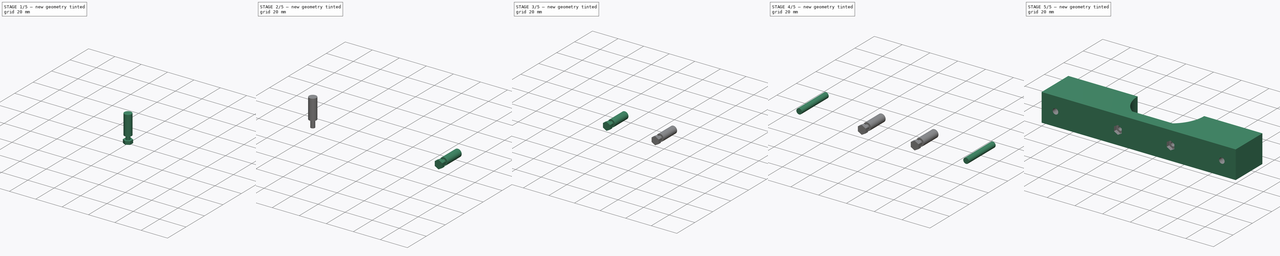
[diagram: build sequence overview — one tinted view per stage of 5, left to right]
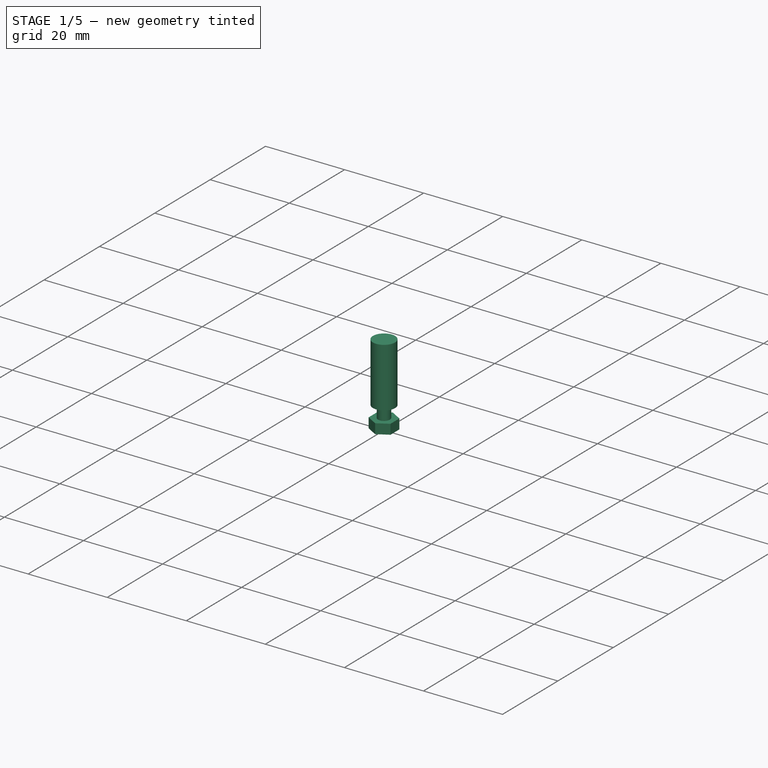
[diagram: stage 1 of 5 — iso view after this stage's code; geometry added in this stage tinted green]
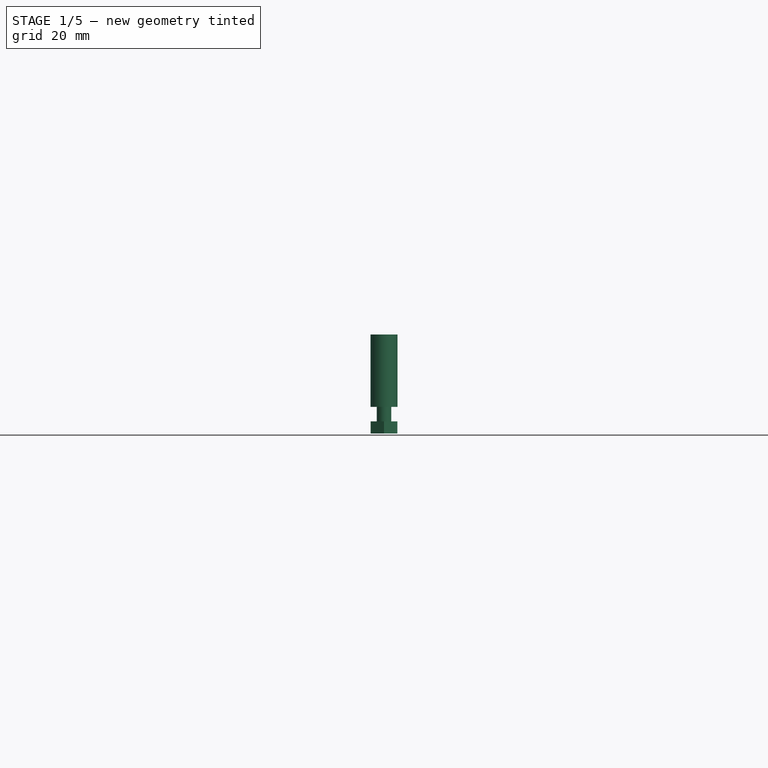
[diagram: stage 1 of 5 — front view after this stage's code; geometry added in this stage tinted green]
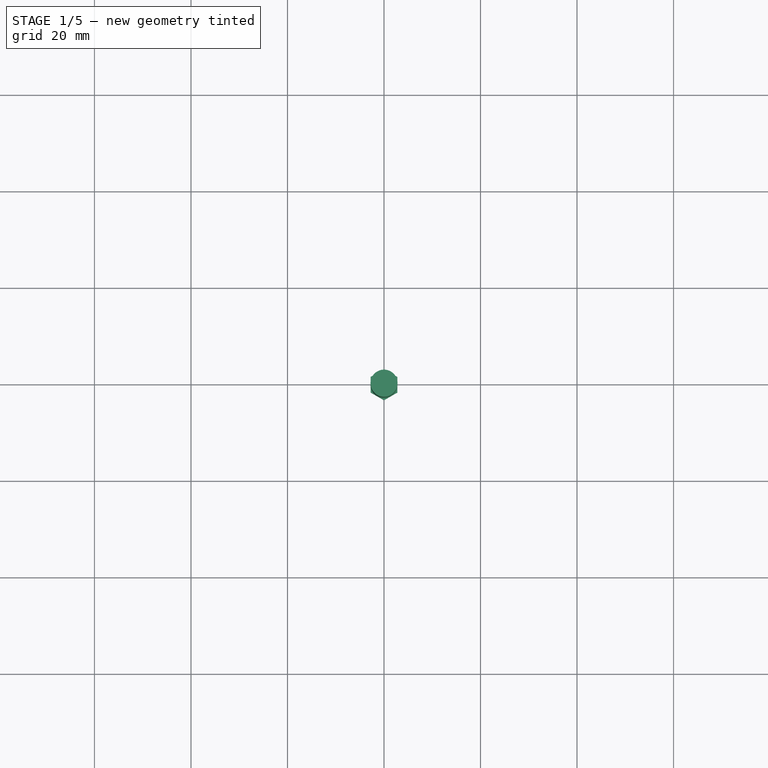
[diagram: stage 1 of 5 — top view after this stage's code; geometry added in this stage tinted green]
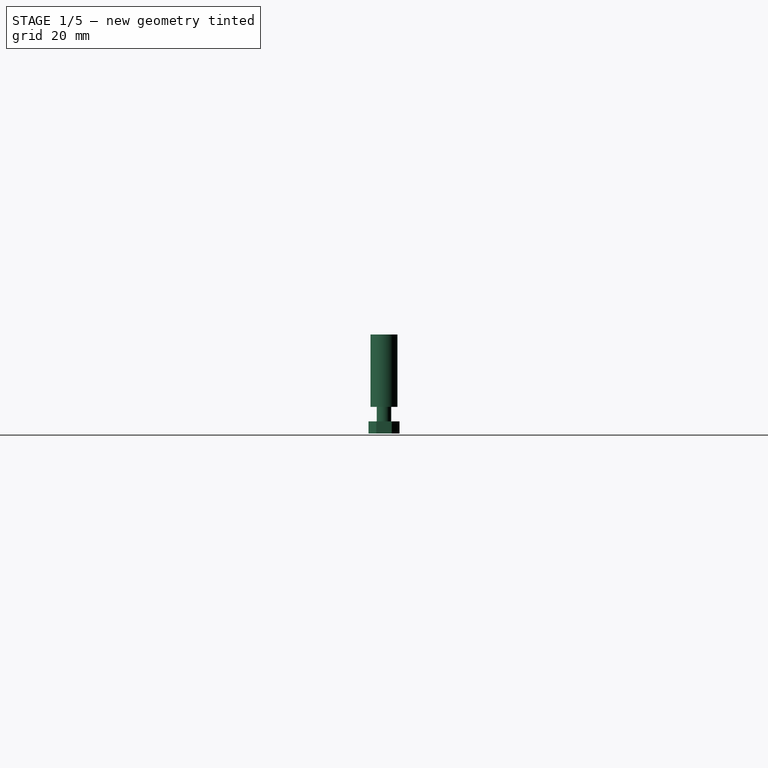
[diagram: stage 1 of 5 — right view after this stage's code; geometry added in this stage tinted green]
FCSTD DOCUMENT  (FreeCAD 0.18R16085 (Git))
Label: motor_mount
License: All rights reserved
LicenseURL: http://en.wikipedia.org/wiki/All_rights_reserved
objects: Part::Cylinder×6, Part::MultiFuse×4, Sketcher::SketchObject×3, PartDesign::Pad×3, PartDesign::Body×3, Part::Cut×2
note: 24 computed .brp shape members not serialized (recipe doc carries the construction recipe); baked Part::Feature solids carry a one-line shape summary decoded from their .brp

FEATURE [Sketcher::SketchObject] Sketch002
  MapMode = 5
  Support = -> [XY_Plane002]
  sketch-geometry (7):
    g0: LineSegment StartX=-1e-16 StartY=-3.2 StartZ=0 EndX=2.77128 EndY=-1.6 EndZ=0
    g1: LineSegment StartX=2.77128 StartY=-1.6 StartZ=0 EndX=2.77128 EndY=1.6 EndZ=0
    g2: LineSegment StartX=2.77128 StartY=1.6 StartZ=0 EndX=0 EndY=3.2 EndZ=0
    g3: LineSegment StartX=0 StartY=3.2 StartZ=0 EndX=-2.77128 EndY=1.6 EndZ=0
    g4: LineSegment StartX=-2.77128 StartY=1.6 StartZ=0 EndX=-2.77128 EndY=-1.6 EndZ=0
    g5: LineSegment StartX=-2.77128 StartY=-1.6 StartZ=0 EndX=0 EndY=-3.2 EndZ=0
    g6: Circle [constr] CenterX=0 CenterY=0 CenterZ=0 NormalX=0 NormalY=0 NormalZ=1 AngleXU=0 Radius=3.2
  constraints (14):
    c: Coincident(g0,g1)
    c: Coincident(g1,g2)
    c: Coincident(g2,g3)
    c: Coincident(g3,g4)
    c: Coincident(g4,g5)
    c: Coincident(g5,g0)
    c: Equal(g0, g1-g5) x5
    c: PointOnObject(g0,g6)
    c: PointOnObject(g1,g6)
    c: PointOnObject(g2,g6)
    c: PointOnObject(g3,g6)
    c: PointOnObject(g4,g6)
    c: PointOnObject(g5,g6)
    c: Coincident(g6,g-1)
FEATURE [PartDesign::Pad] Pad002
  Length = 2.5
  Length2 = 100
  Profile = -> Sketch002
  Type = 0
FEATURE [PartDesign::Body] Body002
  Group = -> [Sketch002,Pad002]
  Origin = -> Origin002
  Tip = -> Pad002
FEATURE [Part::Cylinder] Cylinder004
  Angle = 360
  AttacherType = Attacher::AttachEngine3D
  Height = 8.5
  Radius = 1.5
FEATURE [Part::Cylinder] Cylinder005
  Angle = 360
  AttacherType = Attacher::AttachEngine3D
  Height = 15
  Placement = pos=(0,0,5.5) rot=(0,0,1;0rad)
  Radius = 2.8
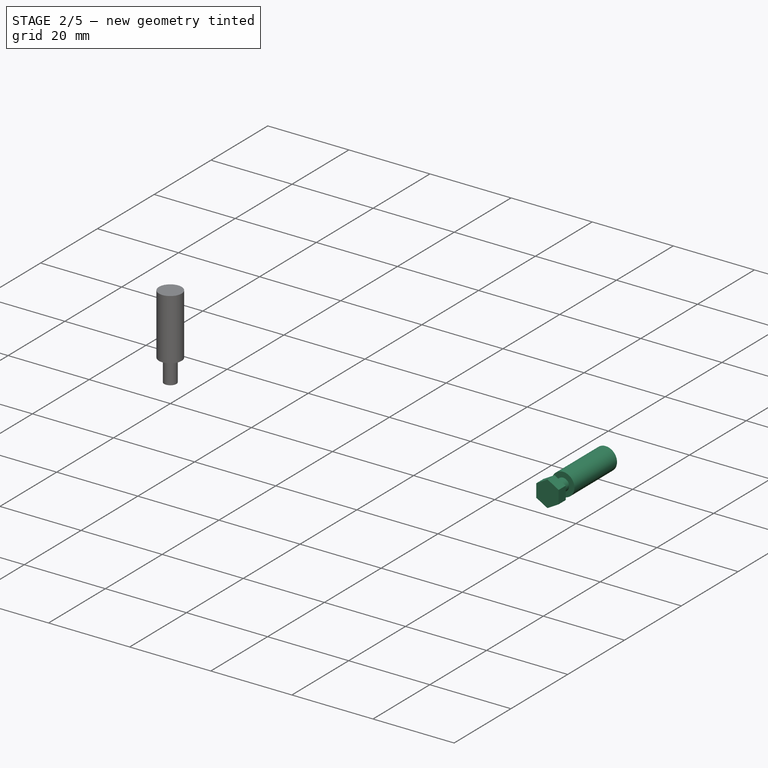
[diagram: stage 2 of 5 — iso view after this stage's code; geometry added in this stage tinted green]
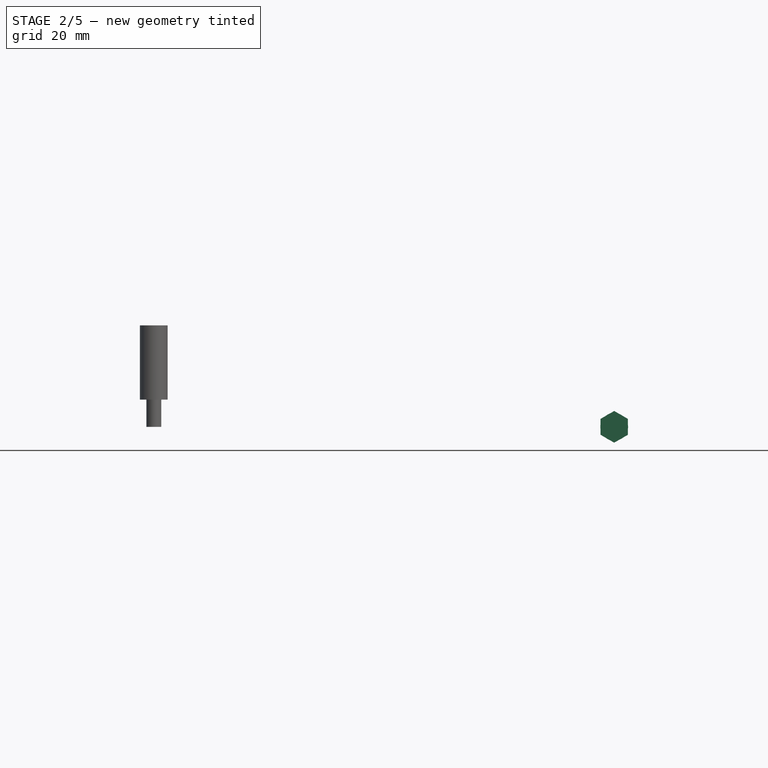
[diagram: stage 2 of 5 — front view after this stage's code; geometry added in this stage tinted green]
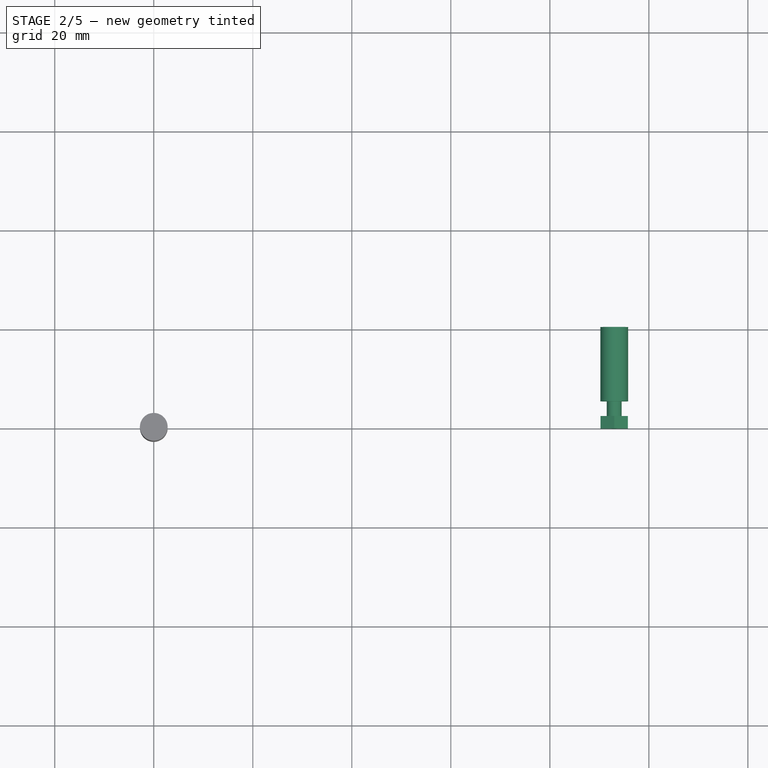
[diagram: stage 2 of 5 — top view after this stage's code; geometry added in this stage tinted green]
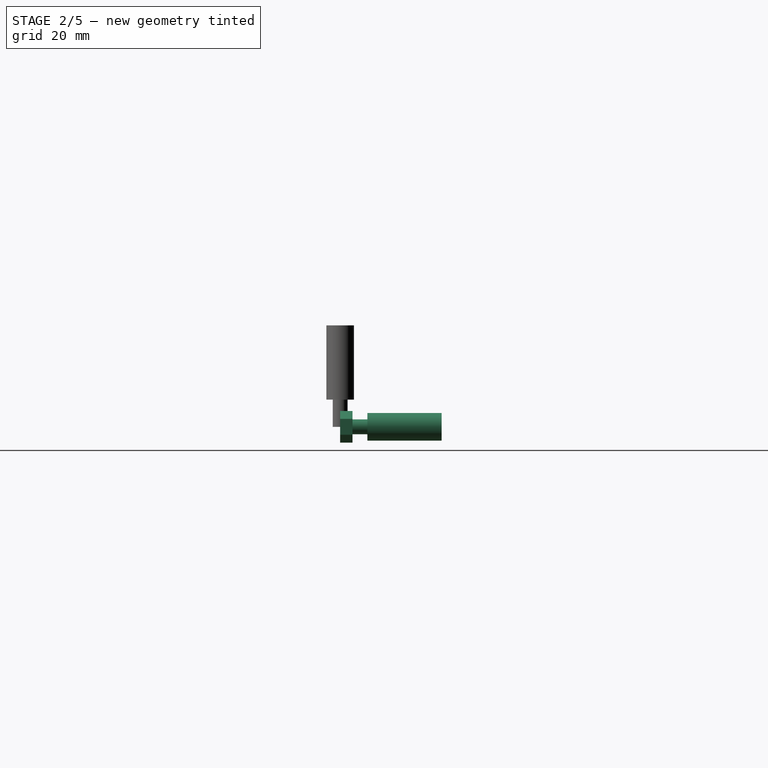
[diagram: stage 2 of 5 — right view after this stage's code; geometry added in this stage tinted green]
FEATURE [PartDesign::Body] Body001
  Group = -> [Sketch001,Pad001]
  Origin = -> Origin001
  Tip = -> Pad001
FEATURE [Part::Cylinder] Cylinder002
  Angle = 360
  AttacherType = Attacher::AttachEngine3D
  Height = 8.5
  Radius = 1.5
FEATURE [Part::Cylinder] Cylinder003
  Angle = 360
  AttacherType = Attacher::AttachEngine3D
  Height = 15
  Placement = pos=(0,0,5.5) rot=(0,0,1;0rad)
  Radius = 2.8
FEATURE [Part::MultiFuse] Fusion002
  Placement = pos=(93,0,0) rot=(-1,0,0;1.5708rad)
  Shapes = -> [Cylinder004,Body002,Cylinder005]
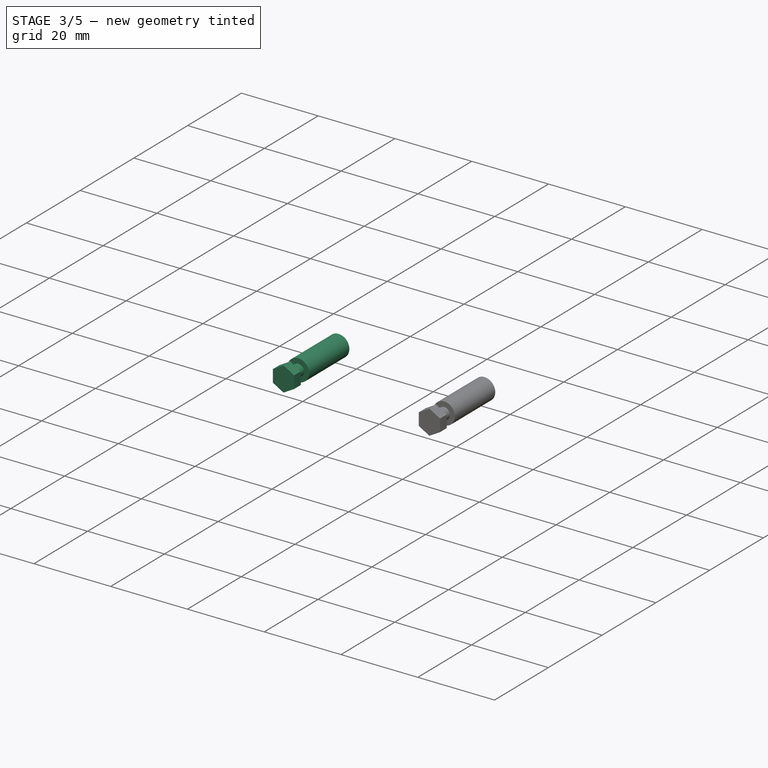
[diagram: stage 3 of 5 — iso view after this stage's code; geometry added in this stage tinted green]
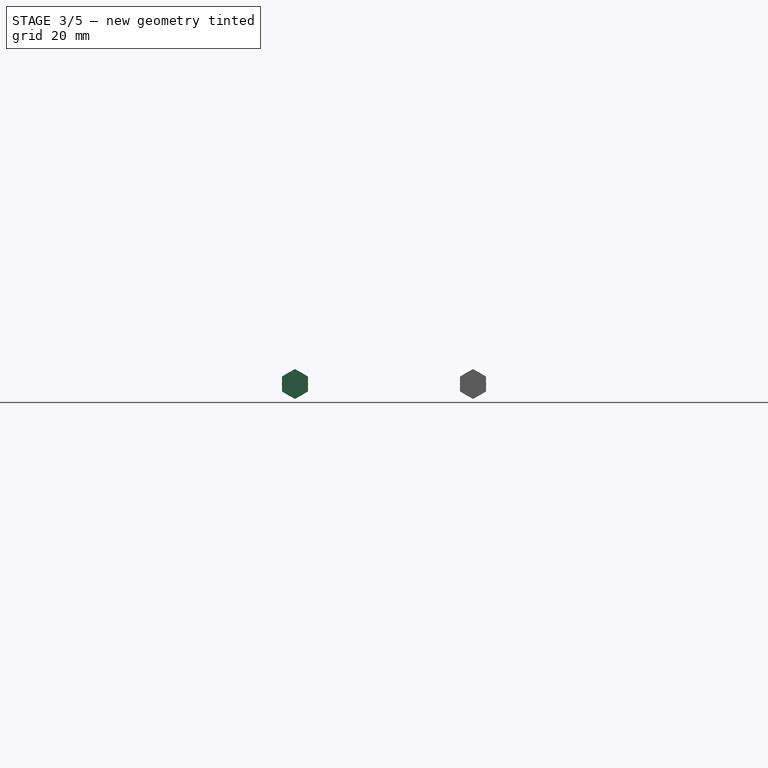
[diagram: stage 3 of 5 — front view after this stage's code; geometry added in this stage tinted green]
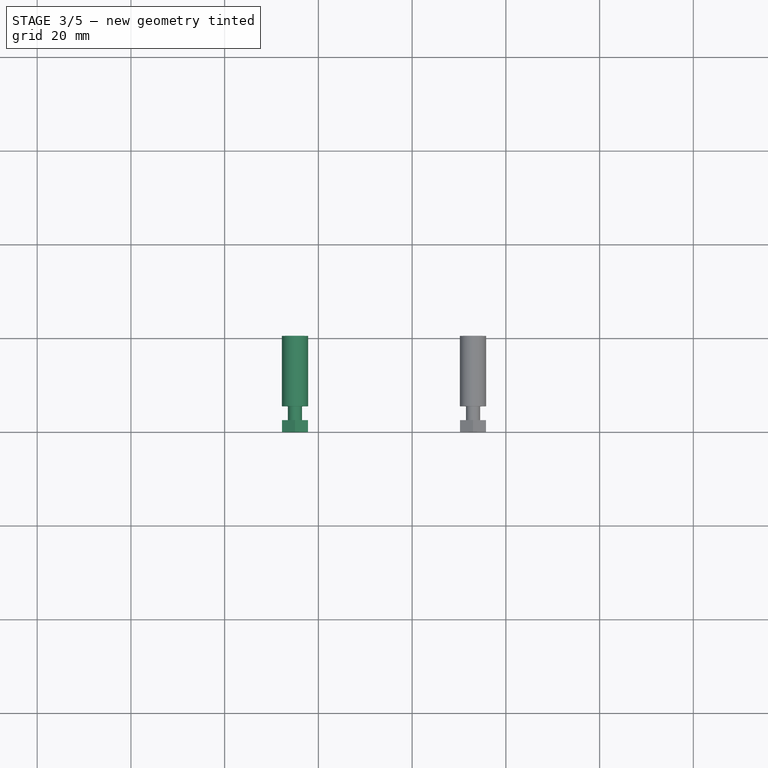
[diagram: stage 3 of 5 — top view after this stage's code; geometry added in this stage tinted green]
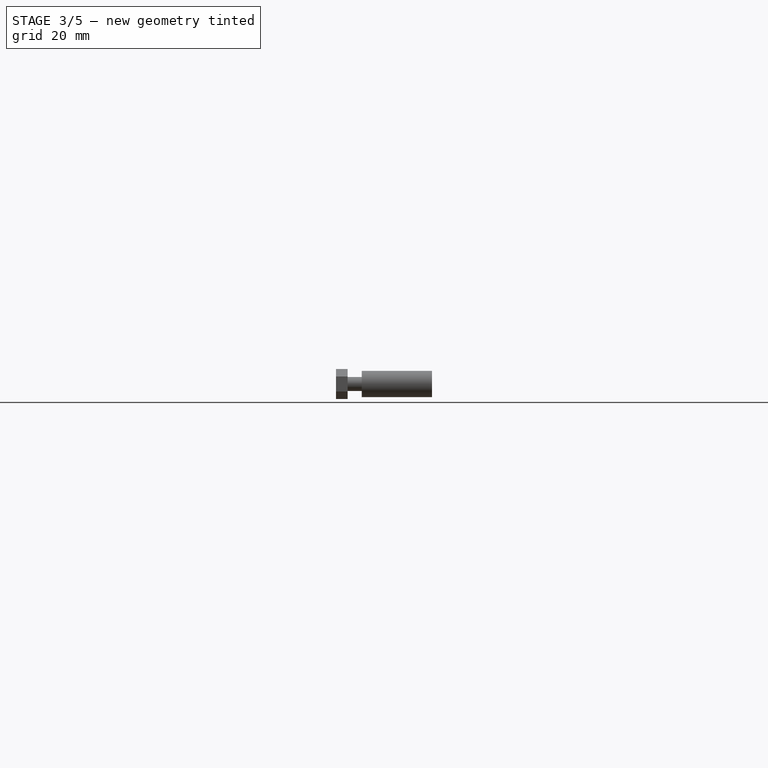
[diagram: stage 3 of 5 — right view after this stage's code; geometry added in this stage tinted green]
FEATURE [Sketcher::SketchObject] Sketch001
  MapMode = 5
  Support = -> [XY_Plane001]
  sketch-geometry (7):
    g0: LineSegment StartX=-1e-16 StartY=-3.2 StartZ=0 EndX=2.77128 EndY=-1.6 EndZ=0
    g1: LineSegment StartX=2.77128 StartY=-1.6 StartZ=0 EndX=2.77128 EndY=1.6 EndZ=0
    g2: LineSegment StartX=2.77128 StartY=1.6 StartZ=0 EndX=0 EndY=3.2 EndZ=0
    g3: LineSegment StartX=0 StartY=3.2 StartZ=0 EndX=-2.77128 EndY=1.6 EndZ=0
    g4: LineSegment StartX=-2.77128 StartY=1.6 StartZ=0 EndX=-2.77128 EndY=-1.6 EndZ=0
    g5: LineSegment StartX=-2.77128 StartY=-1.6 StartZ=0 EndX=0 EndY=-3.2 EndZ=0
    g6: Circle [constr] CenterX=0 CenterY=0 CenterZ=0 NormalX=0 NormalY=0 NormalZ=1 AngleXU=0 Radius=3.2
  constraints (14):
    c: Coincident(g0,g1)
    c: Coincident(g1,g2)
    c: Coincident(g2,g3)
    c: Coincident(g3,g4)
    c: Coincident(g4,g5)
    c: Coincident(g5,g0)
    c: Equal(g0, g1-g5) x5
    c: PointOnObject(g0,g6)
    c: PointOnObject(g1,g6)
    c: PointOnObject(g2,g6)
    c: PointOnObject(g3,g6)
    c: PointOnObject(g4,g6)
    c: PointOnObject(g5,g6)
    c: Coincident(g6,g-1)
FEATURE [PartDesign::Pad] Pad001
  Length = 2.5
  Length2 = 100
  Profile = -> Sketch001
  Type = 0
FEATURE [Part::MultiFuse] Fusion001
  Placement = pos=(55,0,0) rot=(-1,0,0;1.5708rad)
  Shapes = -> [Cylinder002,Body001,Cylinder003]
FEATURE [Part::MultiFuse] Fusion003
  Shapes = -> [Fusion001,Fusion002]
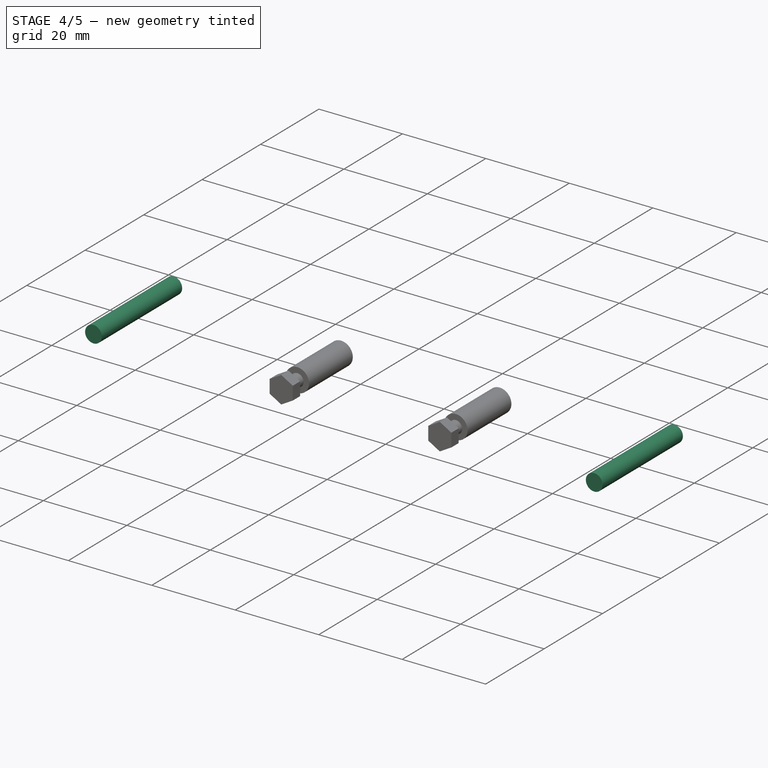
[diagram: stage 4 of 5 — iso view after this stage's code; geometry added in this stage tinted green]
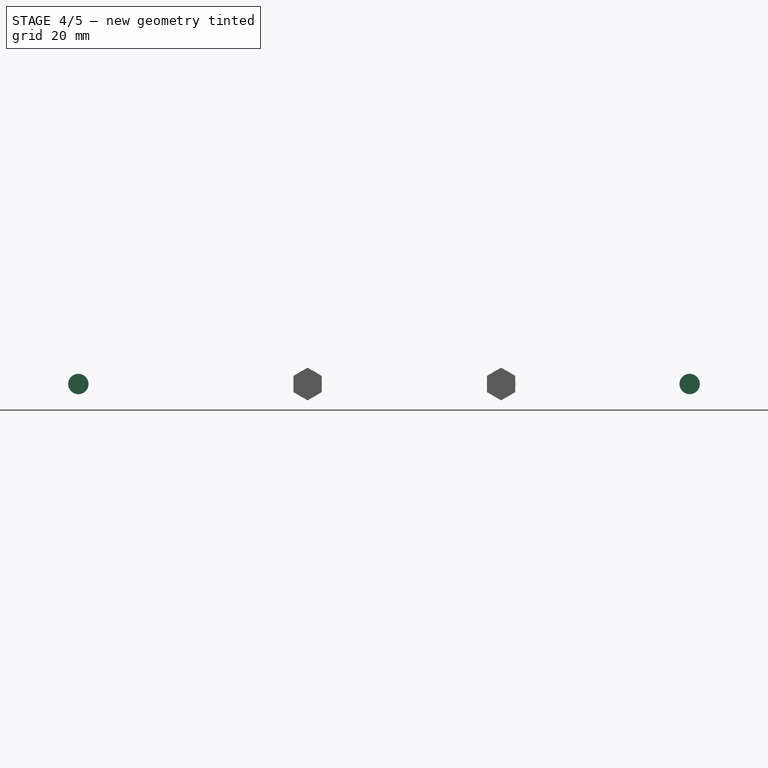
[diagram: stage 4 of 5 — front view after this stage's code; geometry added in this stage tinted green]
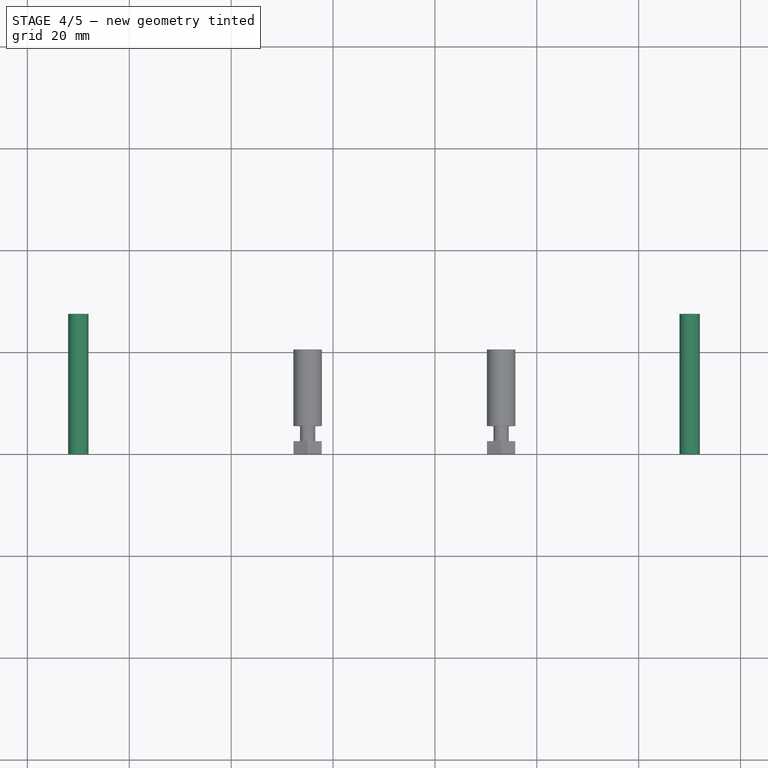
[diagram: stage 4 of 5 — top view after this stage's code; geometry added in this stage tinted green]
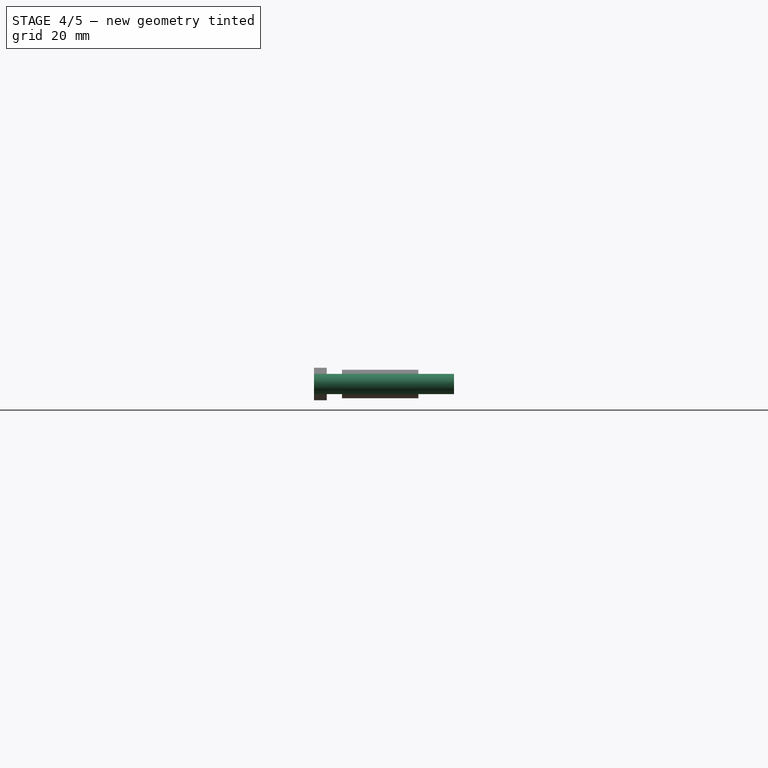
[diagram: stage 4 of 5 — right view after this stage's code; geometry added in this stage tinted green]
FEATURE [PartDesign::Body] Body
  Group = -> [Sketch,Pad]
  Origin = -> Origin
  Tip = -> Pad
FEATURE [Part::Cylinder] Cylinder
  Angle = 360
  AttacherType = Attacher::AttachEngine3D
  Height = 27.5
  Placement = pos=(10,0,0) rot=(-1,0,0;1.5708rad)
  Radius = 2
FEATURE [Part::Cylinder] Cylinder001
  Angle = 360
  AttacherType = Attacher::AttachEngine3D
  Height = 27.5
  Placement = pos=(130,0,0) rot=(-1,0,0;1.5708rad)
  Radius = 2
FEATURE [Part::MultiFuse] Fusion
  Shapes = -> [Cylinder,Cylinder001]
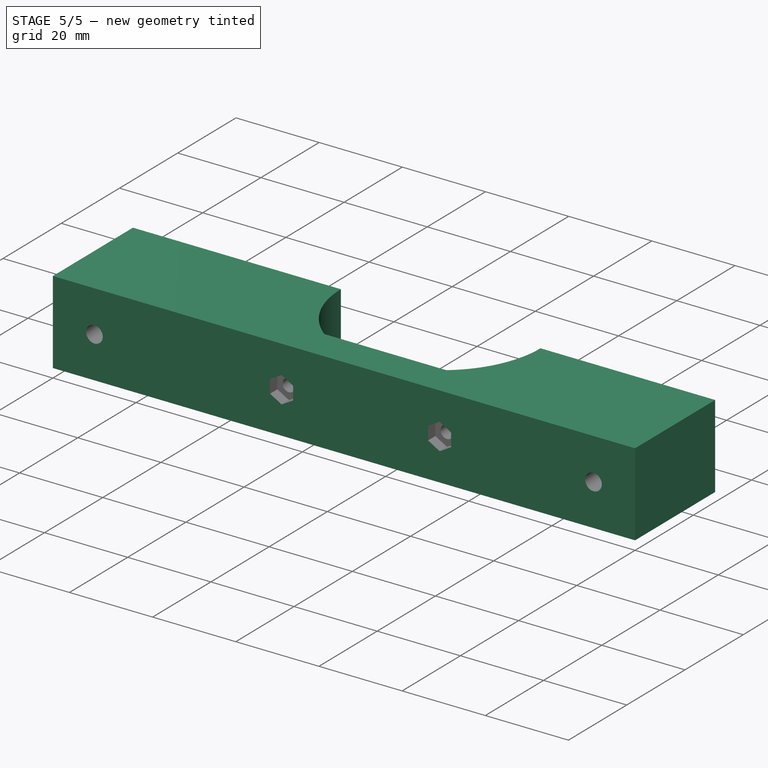
[diagram: stage 5 of 5 — iso view after this stage's code; geometry added in this stage tinted green]
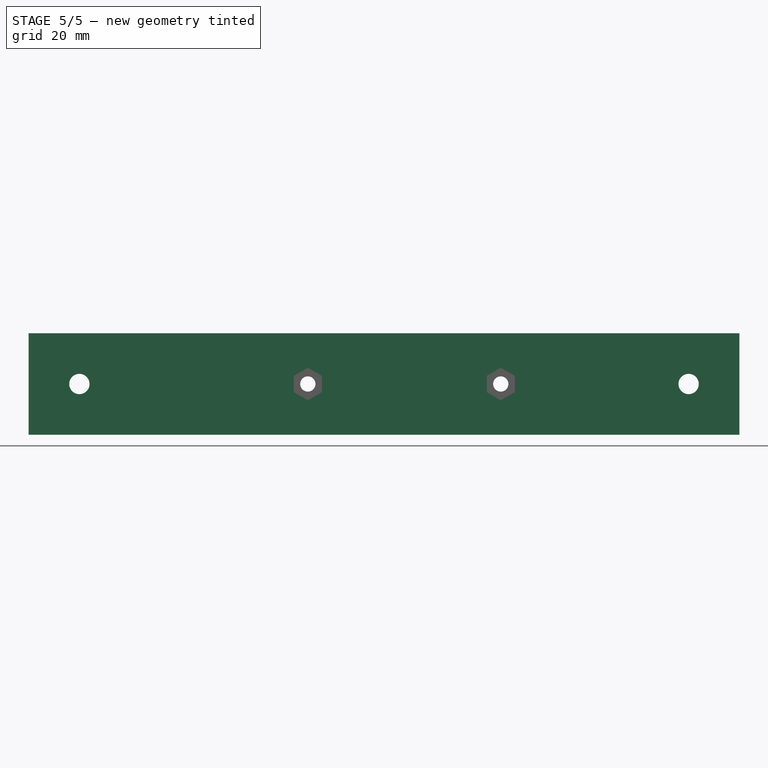
[diagram: stage 5 of 5 — front view after this stage's code; geometry added in this stage tinted green]
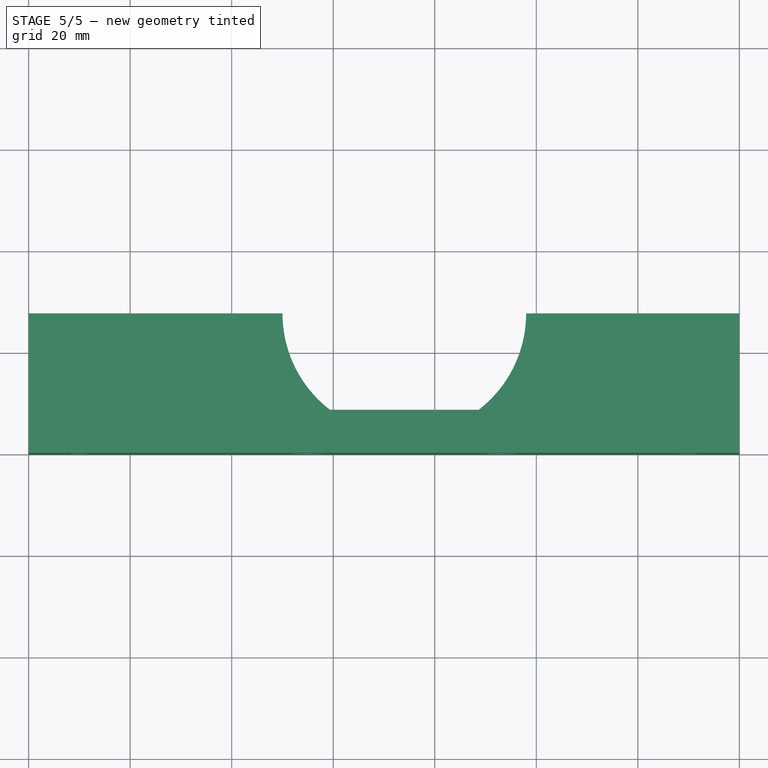
[diagram: stage 5 of 5 — top view after this stage's code; geometry added in this stage tinted green]
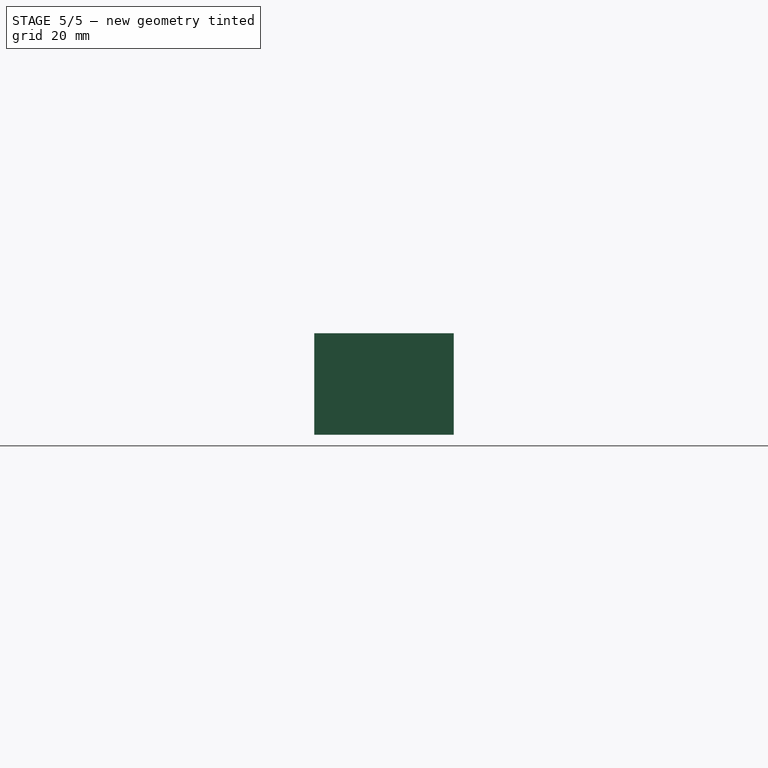
[diagram: stage 5 of 5 — right view after this stage's code; geometry added in this stage tinted green]
FEATURE [Sketcher::SketchObject] Sketch
  MapMode = 2
  Support = -> [Sketch]
  sketch-geometry (9):
    g0: LineSegment StartX=140 StartY=0 StartZ=0 EndX=0 EndY=0 EndZ=0
    g1: LineSegment StartX=140 StartY=27.5 StartZ=0 EndX=140 EndY=-1.07e-14 EndZ=0
    g2: LineSegment StartX=4e-16 StartY=0 StartZ=0 EndX=4e-16 EndY=27.5 EndZ=0
    g3: LineSegment StartX=4e-16 StartY=27.5 StartZ=0 EndX=50 EndY=27.5 EndZ=0
    g4: LineSegment StartX=140 StartY=27.5 StartZ=0 EndX=98 EndY=27.5 EndZ=0
    g5: LineSegment StartX=59.3371 StartY=8.5 StartZ=0 EndX=88.6629 EndY=8.5 EndZ=0
    g6: GeomPoint X=74 Y=27.5 Z=0
    g7: ArcOfCircle CenterX=74 CenterY=27.5 CenterZ=0 NormalX=0 NormalY=0 NormalZ=1 AngleXU=0 Radius=24 StartAngle=3.14159 EndAngle=4.05512
    g8: ArcOfCircle CenterX=74 CenterY=27.5 CenterZ=0 NormalX=0 NormalY=0 NormalZ=1 AngleXU=0 Radius=24 StartAngle=5.36965 EndAngle=6.28319
  constraints (23):
    c: Horizontal(g0)
    c: Vertical(g1)
    c: Vertical(g2)
    c: Coincident(g3,g2)
    c: Horizontal(g3)
    c: Coincident(g4,g1)
    c: Horizontal(g4)
    c: Block(g0)
    c: DistanceY(g1,g1) = 27.5
    c: DistanceX(g3,g4) = 48
    c: Horizontal(g5)
    c: Distance(g4) = 42
    c: DistanceX(g3,g6) = 24
    c: DistanceY(g0,g6) = 27.5
    c: Distance(g0) = 140
    c: Distance(g2,g1) = 140
    c: Coincident(g7,g6)
    c: Coincident(g7,g3)
    c: Coincident(g8,g6)
    c: Coincident(g8,g4)
    c: Coincident(g5,g7)
    c: Coincident(g5,g8)
    c: DistanceY(g0,g5) = 8.5
FEATURE [PartDesign::Pad] Pad
  Length = 20
  Length2 = 100
  Midplane = true
  Profile = -> Sketch
  Type = 0
FEATURE [Part::Cut] Cut
  Base = -> Body
  Tool = -> Fusion
FEATURE [Part::Cut] Cut001
  Base = -> Cut
  Tool = -> Fusion003
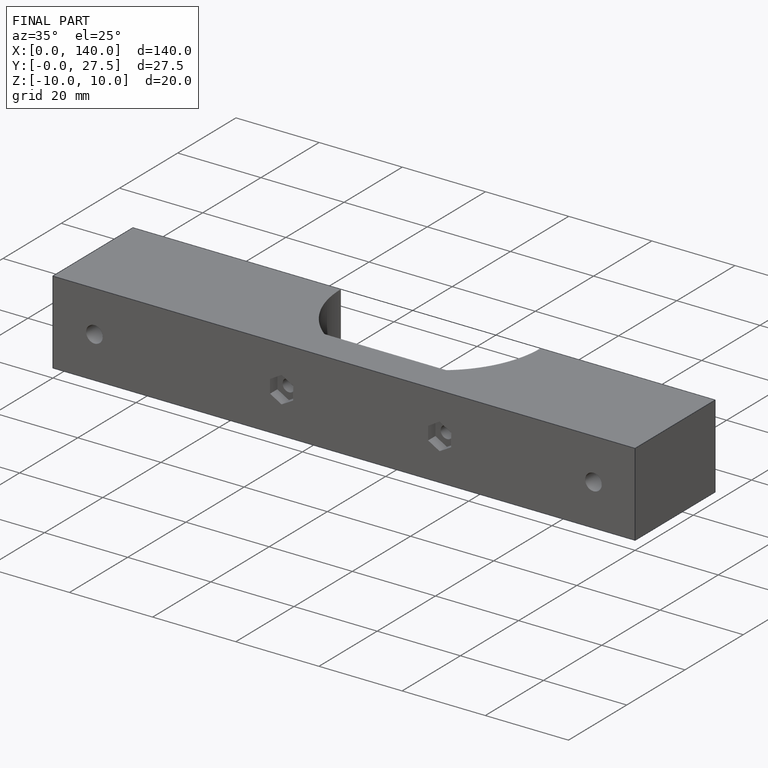
[diagram: finished part — iso view with bounding-box wireframe]
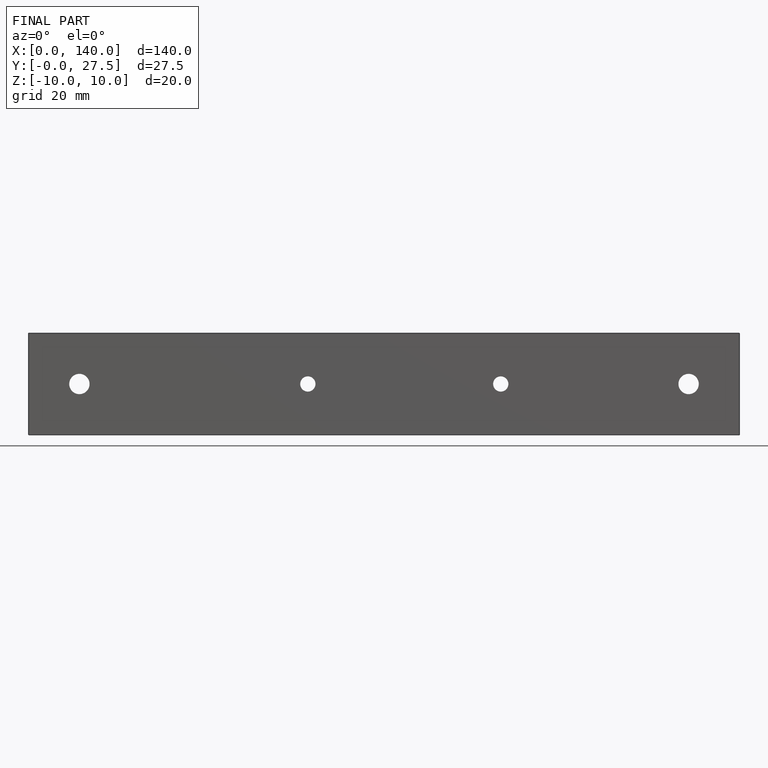
[diagram: finished part — front view with bounding-box wireframe]
